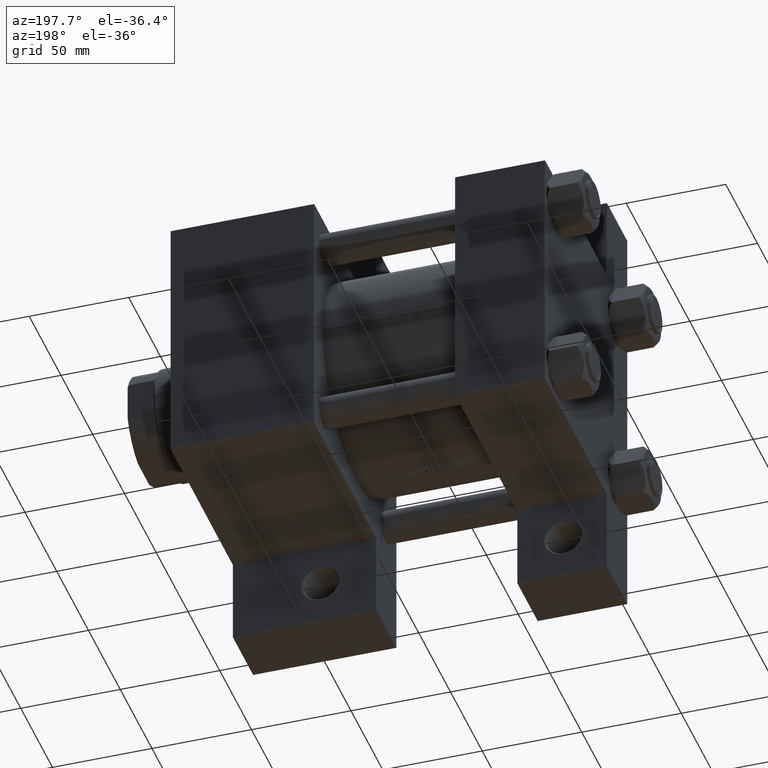
[diagram: clean part render]
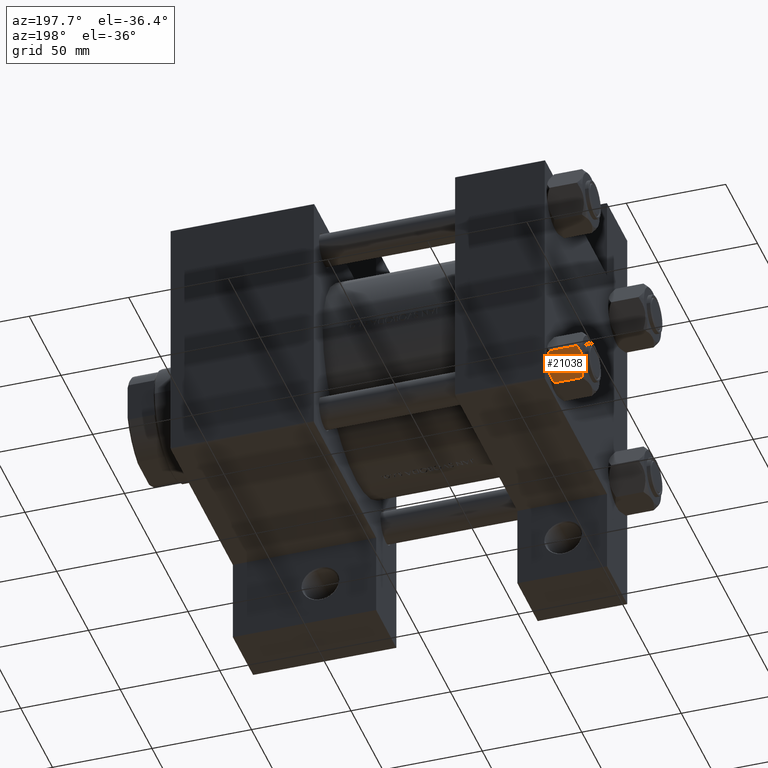
[diagram: same view with one face highlighted and labeled with its STEP entity id]
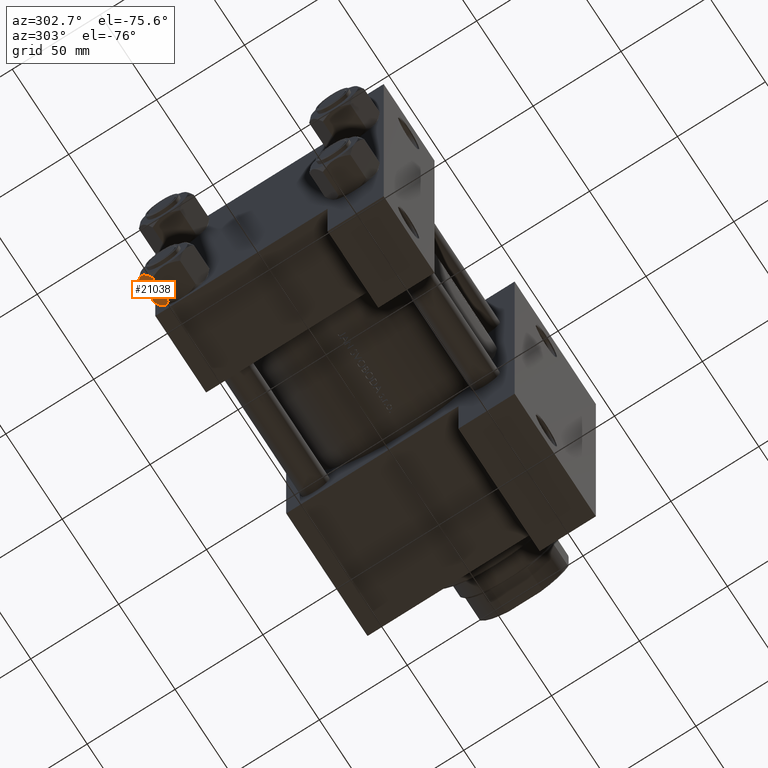
[diagram: same view with one face highlighted and labeled with its STEP entity id]
A machine part, auxiliary view. The second image highlights one B-rep face of the part: STEP entity #21038.
A second angle (auxiliary view) of the same face is appended — the face is thin or edge-on in the first view.
In plain terms, the highlighted planar face has unit normal (0, -0.866, 0.5).
Its self-contained STEP definition (entity closure, byte-faithful):
#167 = LINE ( 'NONE', #11065, #39095 ) ;
#725 = CARTESIAN_POINT ( 'NONE',  ( -13.36540581434586628, -3.905071680002313084, -0.3836066851120598087 ) ) ;
#998 = EDGE_CURVE ( 'NONE', #40554, #43555, #13819, .T. ) ;
#1302 = CARTESIAN_POINT ( 'NONE',  ( -14.30591678195076533, -2.276058899034881566, -17.05261278537718539 ) ) ;
#1508 = CARTESIAN_POINT ( 'NONE',  ( -7.903528262322684128, -13.36532110482641400, -2.000000000000000000 ) ) ;
#2048 = CARTESIAN_POINT ( 'NONE',  ( -10.40215497533437805, -9.037572688741335014, -0.1971866459924560555 ) ) ;
#2279 = VERTEX_POINT ( 'NONE', #25885 ) ;
#3743 = CARTESIAN_POINT ( 'NONE',  ( -10.38662926516872176, -9.064464007571844562, -17.75691532989870680 ) ) ;
#4454 = ORIENTED_EDGE ( 'NONE', *, *, #29935, .F. ) ;
#4466 = CARTESIAN_POINT ( 'NONE',  ( -12.37702203890362540, -5.617002596445041185, -18.00000000000000355 ) ) ;
#4824 = EDGE_CURVE ( 'NONE', #39413, #21528, #47936, .T. ) ;
#5317 = CARTESIAN_POINT ( 'NONE',  ( -11.71500000000000163, -6.763658403556456200, 0.000000000000000000 ) ) ;
#5634 = CARTESIAN_POINT ( 'NONE',  ( -7.809999999999999609, -13.52731680711293727, -16.00000000000000000 ) ) ;
#5711 = EDGE_CURVE ( 'NONE', #31863, #32234, #17035, .T. ) ;
#6009 = ORIENTED_EDGE ( 'NONE', *, *, #13891, .T. ) ;
#6992 = DIRECTION ( 'NONE',  ( -0.000000000000000000, -0.000000000000000000, 1.000000000000000000 ) ) ;
#7156 = LINE ( 'NONE', #25869, #16440 ) ;
#7393 = DIRECTION ( 'NONE',  ( 0.4999999999999994449, -0.8660254037844390407, 0.000000000000000000 ) ) ;
#7866 = DIRECTION ( 'NONE',  ( 0.8660254037844390407, 0.4999999999999994449, 0.000000000000000000 ) ) ;
#8050 = CARTESIAN_POINT ( 'NONE',  ( -7.903528262322677023, -13.36532110482642821, -16.00000000000000000 ) ) ;
#8365 = ORIENTED_EDGE ( 'NONE', *, *, #27319, .F. ) ;
#8585 = PLANE ( 'NONE',  #37523 ) ;
#8861 = CARTESIAN_POINT ( 'NONE',  ( -7.809999999999999609, -13.52731680711293727, -16.00000000000000000 ) ) ;
#8983 = ORIENTED_EDGE ( 'NONE', *, *, #39141, .F. ) ;
#9543 = CARTESIAN_POINT ( 'NONE',  ( -8.506059550806629233, -12.32170630002229217, -1.434462921875003572 ) ) ;
#10134 = CARTESIAN_POINT ( 'NONE',  ( -15.61999999999999567, 8.023367828467702033E-15, -18.00000000000000000 ) ) ;
#10868 = DIRECTION ( 'NONE',  ( -0.000000000000000000, -0.000000000000000000, 1.000000000000000000 ) ) ;
#10926 = CARTESIAN_POINT ( 'NONE',  ( -15.52647173767732625, -0.1619957022864848828, -16.00000000000000000 ) ) ;
#11065 = CARTESIAN_POINT ( 'NONE',  ( -7.809999999999999609, -13.52731680711293727, -1.999999999999998224 ) ) ;
#11267 = EDGE_CURVE ( 'NONE', #32234, #39413, #31840, .T. ) ;
#12371 = CARTESIAN_POINT ( 'NONE',  ( -9.114548888011787753, -11.26777185211903465, -17.08577173959730544 ) ) ;
#12578 = CARTESIAN_POINT ( 'NONE',  ( -12.04818928091285635, -6.186557640478053344, -6.945670167485262780E-17 ) ) ;
#12646 = CARTESIAN_POINT ( 'NONE',  ( -8.202637790192653711, -12.84724820552769664, -1.706311779141443496 ) ) ;
#13506 = ORIENTED_EDGE ( 'NONE', *, *, #11267, .F. ) ;
#13819 = B_SPLINE_CURVE_WITH_KNOTS ( 'NONE', 3,
 ( #41809, #23756, #34997, #725, #15504, #38396, #12578, #5317 ),
 .UNSPECIFIED., .F., .F.,
 ( 4, 2, 2, 4 ),
 ( 4.472842641998575579E-07, 0.003945636373369311792, 0.005918230917921869609, 0.007890825462474427426 ),
 .UNSPECIFIED. ) ;
#13891 = EDGE_CURVE ( 'NONE', #18886, #15065, #17908, .T. ) ;
#14910 = CARTESIAN_POINT ( 'NONE',  ( -7.809999999999999609, -13.52731680711293727, -18.00000000000000000 ) ) ;
#15065 = VERTEX_POINT ( 'NONE', #20487 ) ;
#15325 = VECTOR ( 'NONE', #41973, 999.9999999999998863 ) ;
#15504 = CARTESIAN_POINT ( 'NONE',  ( -13.04337073483127973, -4.462852799541074056, -0.2430846701012976674 ) ) ;
#15603 = CARTESIAN_POINT ( 'NONE',  ( -15.52647173767732625, -0.1619957022864848828, -16.00000000000000000 ) ) ;
#16440 = VECTOR ( 'NONE', #7393, 999.9999999999998863 ) ;
#16825 = CARTESIAN_POINT ( 'NONE',  ( -9.439480280627266851, -10.70497417113491245, -0.7317196846281139866 ) ) ;
#17035 = B_SPLINE_CURVE_WITH_KNOTS ( 'NONE', 3,
 ( #45727, #33402, #12371, #18759, #3743, #22415, #26077, #33639 ),
 .UNSPECIFIED., .F., .F.,
 ( 4, 2, 2, 4 ),
 ( 4.472842641790793103E-07, 0.003945636373369299649, 0.005918230917921861803, 0.007890825462474423957 ),
 .UNSPECIFIED. ) ;
#17748 = CARTESIAN_POINT ( 'NONE',  ( -7.809999999999999609, -13.52731680711293727, -16.00000000000000000 ) ) ;
#17908 = LINE ( 'NONE', #47860, #42787 ) ;
#18446 = CARTESIAN_POINT ( 'NONE',  ( -11.71500000000000519, -6.763658403556458865, -18.00000000000000000 ) ) ;
#18759 = CARTESIAN_POINT ( 'NONE',  ( -10.06459418565412456, -9.622245127110600649, -17.61639331488793658 ) ) ;
#18886 = VERTEX_POINT ( 'NONE', #5634 ) ;
#19270 = DIRECTION ( 'NONE',  ( -0.4999999999999993894, 0.8660254037844389297, 0.000000000000000000 ) ) ;
#19398 = CARTESIAN_POINT ( 'NONE',  ( -11.71500000000000163, -6.763658403556456200, 0.000000000000000000 ) ) ;
#19481 = EDGE_LOOP ( 'NONE', ( #47417, #6009, #4454, #8983, #28180, #8365, #43646, #42447, #13506, #39187 ) ) ;
#19818 = CARTESIAN_POINT ( 'NONE',  ( -15.61999999999999567, 8.023367828467702033E-15, -16.00000000000000000 ) ) ;
#20487 = CARTESIAN_POINT ( 'NONE',  ( -7.809999999999999609, -13.52731680711293727, -1.999999999999998224 ) ) ;
#21038 = ADVANCED_FACE ( 'NONE', ( #33906 ), #8585, .F. ) ;
#21528 = VERTEX_POINT ( 'NONE', #19818 ) ;
#22415 = CARTESIAN_POINT ( 'NONE',  ( -11.04378428799595113, -7.926238119585995889, -17.94910618364699317 ) ) ;
#22664 = CARTESIAN_POINT ( 'NONE',  ( -13.99051971937273997, -2.822342635977991954, -17.26828031537189290 ) ) ;
#23438 = LINE ( 'NONE', #8861, #15325 ) ;
#23756 = CARTESIAN_POINT ( 'NONE',  ( -14.92760668674624469, -1.199260397376444409, -1.411989271640068155 ) ) ;
#24488 = CARTESIAN_POINT ( 'NONE',  ( -15.52647173767731914, -0.1619957022864979002, -2.000000000000000000 ) ) ;
#24726 = LINE ( 'NONE', #10134, #33973 ) ;
#25491 = VECTOR ( 'NONE', #32627, 999.9999999999998863 ) ;
#25869 = CARTESIAN_POINT ( 'NONE',  ( -7.809999999999999609, -13.52731680711293727, -1.999999999999998224 ) ) ;
#25885 = CARTESIAN_POINT ( 'NONE',  ( -7.903528262322684128, -13.36532110482641400, -2.000000000000000000 ) ) ;
#26077 = CARTESIAN_POINT ( 'NONE',  ( -11.38181071908714870, -7.340759166634860833, -18.00000000000001066 ) ) ;
#27319 = EDGE_CURVE ( 'NONE', #28680, #40554, #7156, .T. ) ;
#28180 = ORIENTED_EDGE ( 'NONE', *, *, #998, .F. ) ;
#28680 = VERTEX_POINT ( 'NONE', #29629 ) ;
#29629 = CARTESIAN_POINT ( 'NONE',  ( -15.61999999999999567, 8.023367828467702033E-15, -1.999999999999998224 ) ) ;
#29935 = EDGE_CURVE ( 'NONE', #2279, #15065, #167, .T. ) ;
#30474 = CARTESIAN_POINT ( 'NONE',  ( -13.02784502466562699, -4.489744118371571169, -17.80281335400755083 ) ) ;
#31709 = CARTESIAN_POINT ( 'NONE',  ( -9.124083218049248600, -11.25125790807802595, -0.9473872146228143887 ) ) ;
#31840 = B_SPLINE_CURVE_WITH_KNOTS ( 'NONE', 3,
 ( #45083, #4466, #30474, #22664, #1302, #41919, #45321, #15603 ),
 .UNSPECIFIED., .F., .F.,
 ( 4, 2, 2, 4 ),
 ( 0.007890825462474423957, 0.01181022244528554324, 0.01376992093669110288, 0.01572961942809666253 ),
 .UNSPECIFIED. ) ;
#31863 = VERTEX_POINT ( 'NONE', #8050 ) ;
#32234 = VERTEX_POINT ( 'NONE', #18446 ) ;
#32627 = DIRECTION ( 'NONE',  ( -0.4999999999999994449, 0.8660254037844390407, 0.000000000000000000 ) ) ;
#32990 = DIRECTION ( 'NONE',  ( 0.4999999999999994449, -0.8660254037844390407, 0.000000000000000000 ) ) ;
#33402 = CARTESIAN_POINT ( 'NONE',  ( -8.502393313253756801, -12.32805640973647598, -16.58801072835993295 ) ) ;
#33639 = CARTESIAN_POINT ( 'NONE',  ( -11.71500000000000519, -6.763658403556458865, -18.00000000000000000 ) ) ;
#33906 = FACE_OUTER_BOUND ( 'NONE', #19481, .T. ) ;
#33973 = VECTOR ( 'NONE', #10868, 1000.000000000000000 ) ;
#34997 = CARTESIAN_POINT ( 'NONE',  ( -14.31545111198821019, -2.259544954993887078, -0.9142282604026940040 ) ) ;
#35366 = CARTESIAN_POINT ( 'NONE',  ( -11.05297796109638320, -7.910314210667868551, 1.084202172485506160E-16 ) ) ;
#37523 = AXIS2_PLACEMENT_3D ( 'NONE', #14910, #7866, #19270 ) ;
#38396 = CARTESIAN_POINT ( 'NONE',  ( -12.38621571200405569, -5.601078687526920064, -0.05089381635301479939 ) ) ;
#39095 = VECTOR ( 'NONE', #32990, 999.9999999999998863 ) ;
#39141 = EDGE_CURVE ( 'NONE', #43555, #2279, #46281, .T. ) ;
#39187 = ORIENTED_EDGE ( 'NONE', *, *, #5711, .F. ) ;
#39413 = VERTEX_POINT ( 'NONE', #10926 ) ;
#40554 = VERTEX_POINT ( 'NONE', #24488 ) ;
#41809 = CARTESIAN_POINT ( 'NONE',  ( -15.52647173767731914, -0.1619957022864979002, -2.000000000000000000 ) ) ;
#41919 = CARTESIAN_POINT ( 'NONE',  ( -14.92394044919338647, -1.205610507090616235, -16.56553707812499709 ) ) ;
#41973 = DIRECTION ( 'NONE',  ( -0.4999999999999994449, 0.8660254037844390407, 0.000000000000000000 ) ) ;
#42447 = ORIENTED_EDGE ( 'NONE', *, *, #4824, .F. ) ;
#42787 = VECTOR ( 'NONE', #6992, 1000.000000000000000 ) ;
#43555 = VERTEX_POINT ( 'NONE', #19398 ) ;
#43646 = ORIENTED_EDGE ( 'NONE', *, *, #43812, .F. ) ;
#43812 = EDGE_CURVE ( 'NONE', #21528, #28680, #24726, .T. ) ;
#45083 = CARTESIAN_POINT ( 'NONE',  ( -11.71500000000000519, -6.763658403556458865, -18.00000000000000000 ) ) ;
#45321 = CARTESIAN_POINT ( 'NONE',  ( -15.22736220980736199, -0.6800686015852065447, -16.29368822085855584 ) ) ;
#45727 = CARTESIAN_POINT ( 'NONE',  ( -7.903528262322677023, -13.36532110482642821, -16.00000000000000000 ) ) ;
#46281 = B_SPLINE_CURVE_WITH_KNOTS ( 'NONE', 3,
 ( #46540, #35366, #2048, #16825, #31709, #9543, #12646, #1508 ),
 .UNSPECIFIED., .F., .F.,
 ( 4, 2, 2, 4 ),
 ( 0.007890825462474427426, 0.01181022244528554151, 0.01376992093669109421, 0.01572961942809664865 ),
 .UNSPECIFIED. ) ;
#46540 = CARTESIAN_POINT ( 'NONE',  ( -11.71500000000000163, -6.763658403556456200, 0.000000000000000000 ) ) ;
#47417 = ORIENTED_EDGE ( 'NONE', *, *, #47995, .F. ) ;
#47860 = CARTESIAN_POINT ( 'NONE',  ( -7.809999999999999609, -13.52731680711293727, -18.00000000000000000 ) ) ;
#47936 = LINE ( 'NONE', #17748, #25491 ) ;
#47995 = EDGE_CURVE ( 'NONE', #18886, #31863, #23438, .T. ) ;